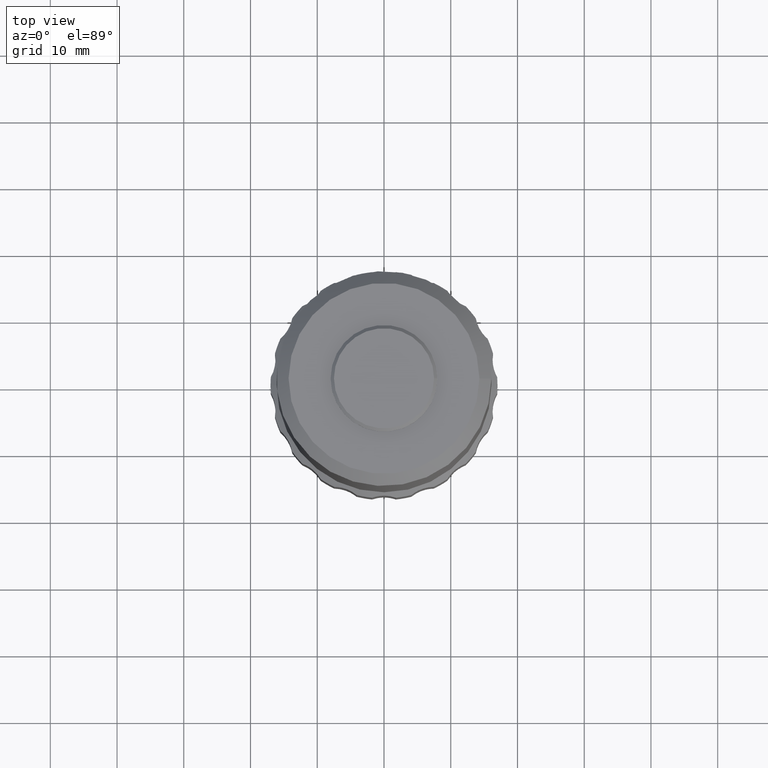
[diagram: clean part render]
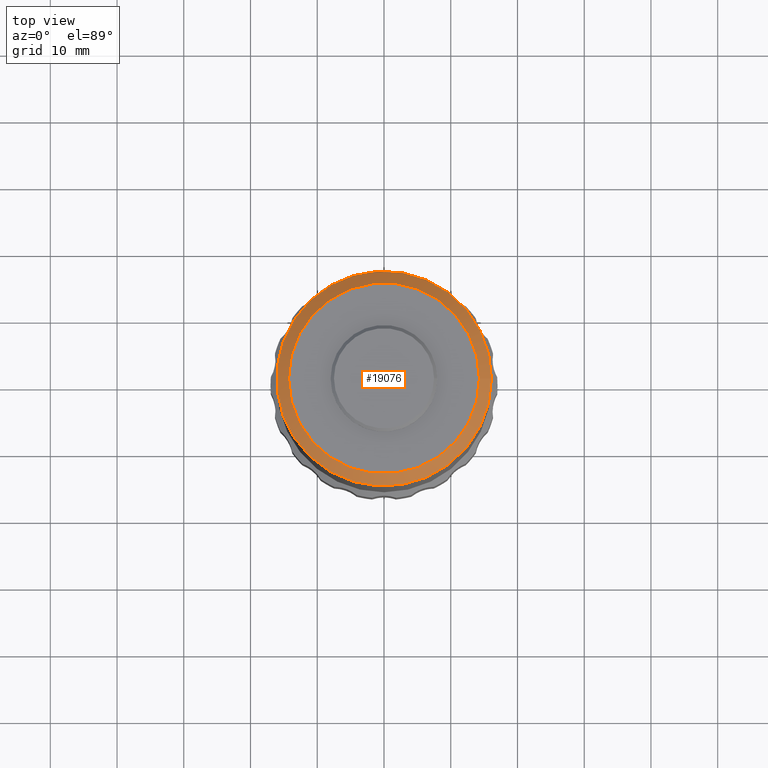
[diagram: same view with one face highlighted and labeled with its STEP entity id]
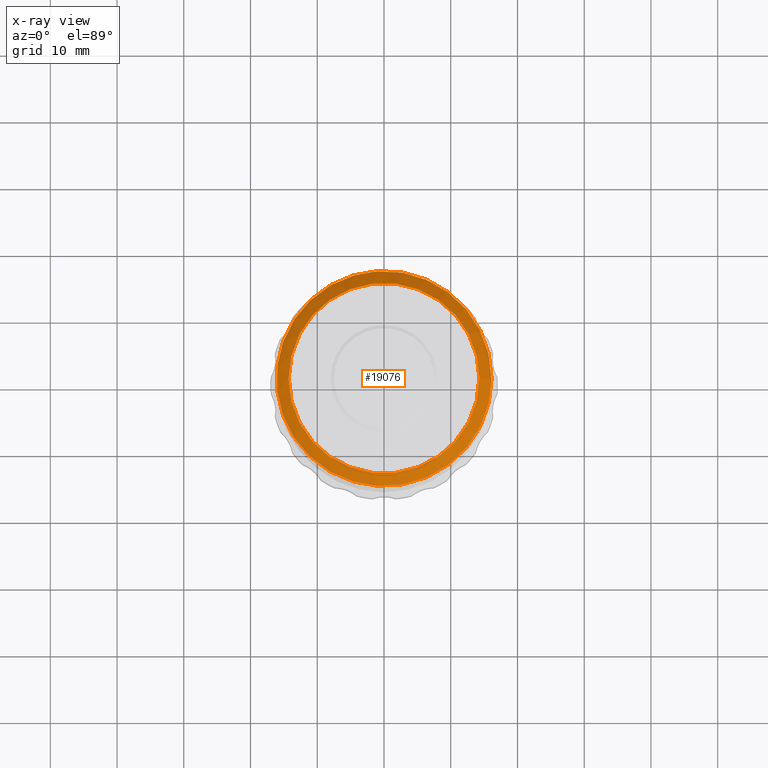
[diagram: x-ray of the same camera — body ghosted, the highlighted face saturated]
A machine part, top view. The second image highlights one B-rep face of the part: STEP entity #19076.
The next image is the same camera in x-ray: the body ghosted, the highlighted face saturated — about 0% of this face is hidden behind the body in this view.
In plain terms, the highlighted conical surface has half-angle 45 deg.
Its self-contained STEP definition (entity closure, byte-faithful):
#10042 = VERTEX_POINT ( 'NONE', #11827 ) ;
#11233 = DIRECTION ( 'NONE',  ( -1.000000000000000000, 0.0000000000000000000, 0.0000000000000000000 ) ) ;
#11827 = CARTESIAN_POINT ( 'NONE',  ( 14.29999999999999400, 0.0000000000000000000, 97.59999999999999400 ) ) ;
#13188 = CIRCLE ( 'NONE', #20063, 16.10000000000000100 ) ;
#15501 = FACE_BOUND ( 'NONE', #34508, .T. ) ;
#17604 = ORIENTED_EDGE ( 'NONE', *, *, #23998, .F. ) ;
#18069 = EDGE_CURVE ( 'NONE', #18255, #18255, #13188, .T. ) ;
#18255 = VERTEX_POINT ( 'NONE', #28306 ) ;
#19076 = ADVANCED_FACE ( 'NONE', ( #15501, #21052 ), #24066, .T. ) ;
#20063 = AXIS2_PLACEMENT_3D ( 'NONE', #32748, #24938, #24584 ) ;
#21052 = FACE_OUTER_BOUND ( 'NONE', #32312, .T. ) ;
#22259 = AXIS2_PLACEMENT_3D ( 'NONE', #22523, #25295, #11233 ) ;
#22523 = CARTESIAN_POINT ( 'NONE',  ( 0.0000000000000000000, 0.0000000000000000000, 95.79999999999996900 ) ) ;
#23998 = EDGE_CURVE ( 'NONE', #10042, #10042, #32152, .T. ) ;
#24066 = CONICAL_SURFACE ( 'NONE', #22259, 16.10000000000000100, 0.7853981633974433900 ) ;
#24584 = DIRECTION ( 'NONE',  ( 1.000000000000000000, 0.0000000000000000000, 0.0000000000000000000 ) ) ;
#24938 = DIRECTION ( 'NONE',  ( -0.0000000000000000000, -0.0000000000000000000, -1.000000000000000000 ) ) ;
#25262 = DIRECTION ( 'NONE',  ( 0.0000000000000000000, 0.0000000000000000000, 1.000000000000000000 ) ) ;
#25295 = DIRECTION ( 'NONE',  ( -0.0000000000000000000, -0.0000000000000000000, -1.000000000000000000 ) ) ;
#26894 = AXIS2_PLACEMENT_3D ( 'NONE', #28168, #25262, #28049 ) ;
#28049 = DIRECTION ( 'NONE',  ( 1.000000000000000000, 0.0000000000000000000, 0.0000000000000000000 ) ) ;
#28168 = CARTESIAN_POINT ( 'NONE',  ( 0.0000000000000000000, 0.0000000000000000000, 97.59999999999999400 ) ) ;
#28306 = CARTESIAN_POINT ( 'NONE',  ( 16.10000000000000100, 0.0000000000000000000, 95.79999999999996900 ) ) ;
#32152 = CIRCLE ( 'NONE', #26894, 14.29999999999999400 ) ;
#32312 = EDGE_LOOP ( 'NONE', ( #35392 ) ) ;
#32748 = CARTESIAN_POINT ( 'NONE',  ( 0.0000000000000000000, 0.0000000000000000000, 95.79999999999996900 ) ) ;
#34508 = EDGE_LOOP ( 'NONE', ( #17604 ) ) ;
#35392 = ORIENTED_EDGE ( 'NONE', *, *, #18069, .F. ) ;